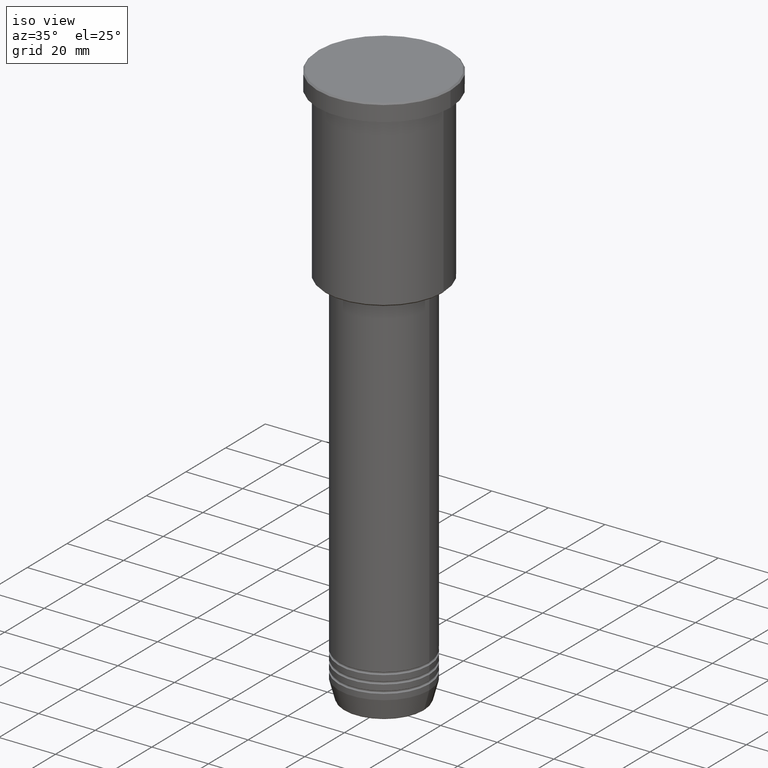
[diagram: clean part render]
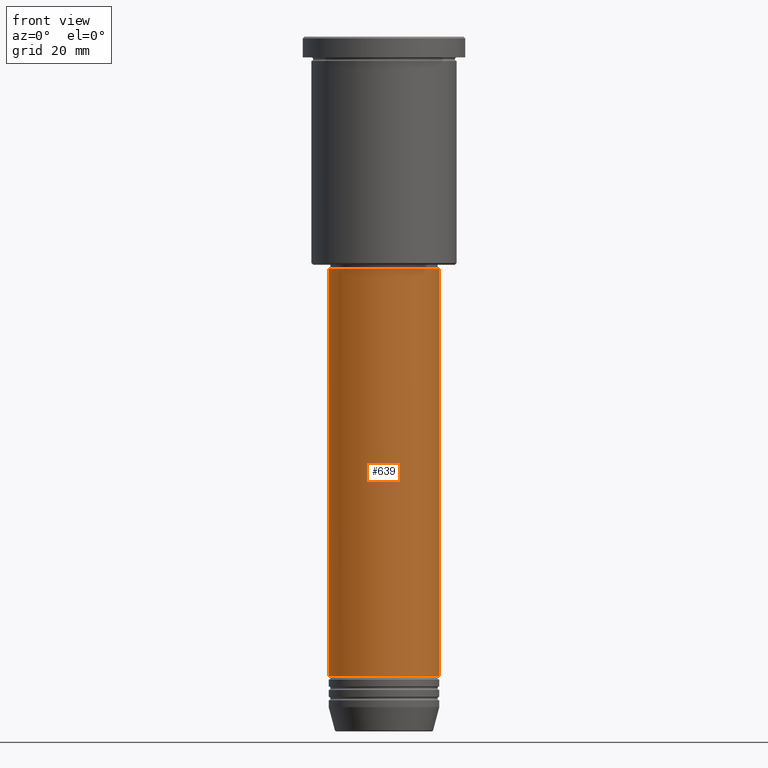
[diagram: tour spotlight — one face highlighted and labeled with its STEP entity id]
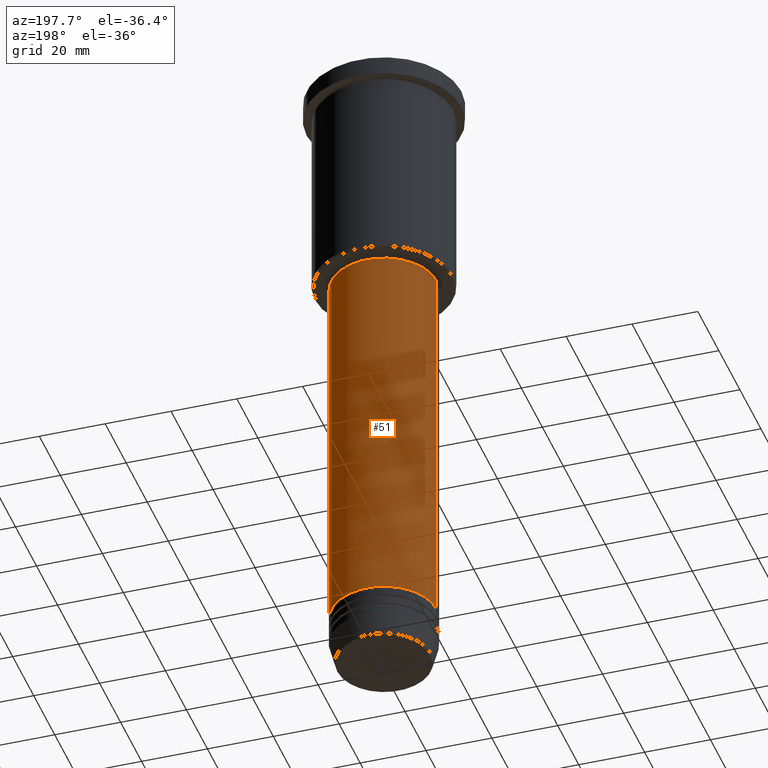
[diagram: tour spotlight — one face highlighted and labeled with its STEP entity id]
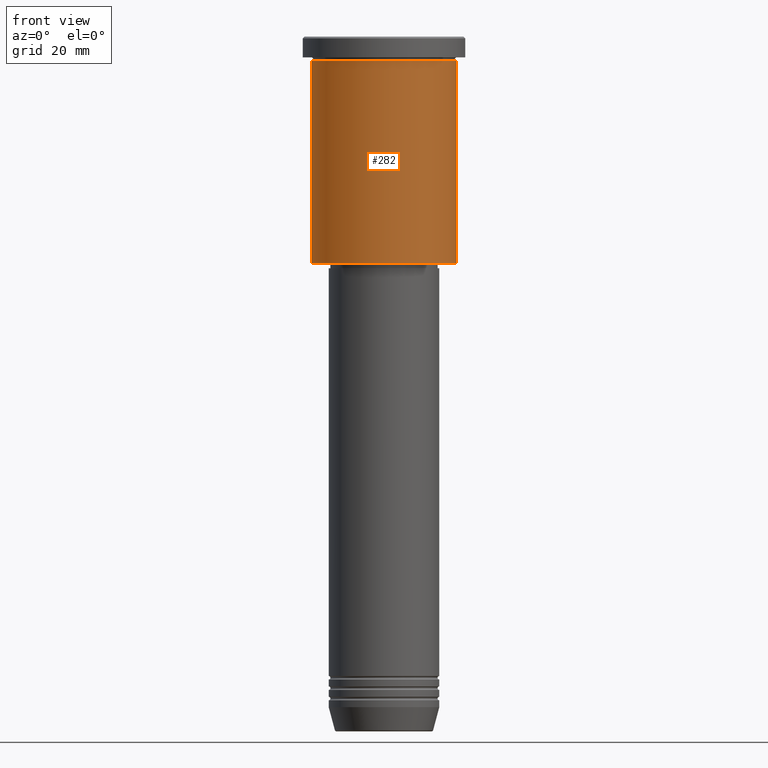
[diagram: tour spotlight — one face highlighted and labeled with its STEP entity id]
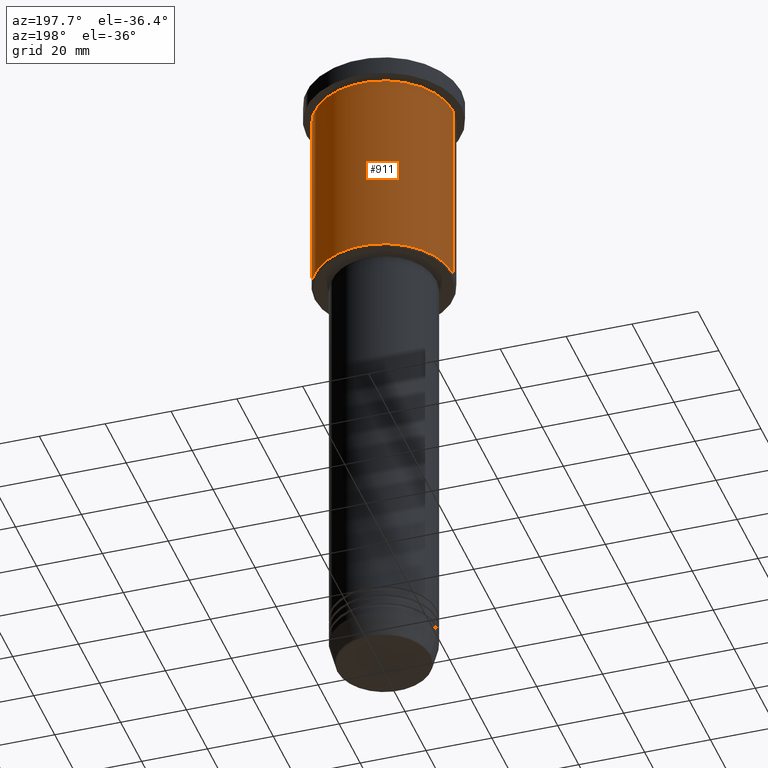
[diagram: tour spotlight — one face highlighted and labeled with its STEP entity id]
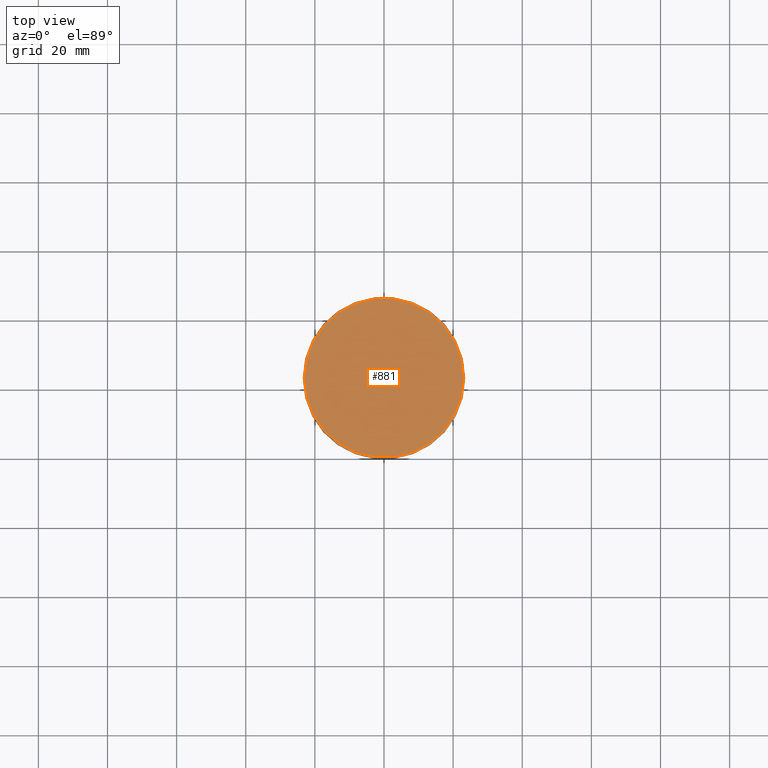
[diagram: tour spotlight — one face highlighted and labeled with its STEP entity id]
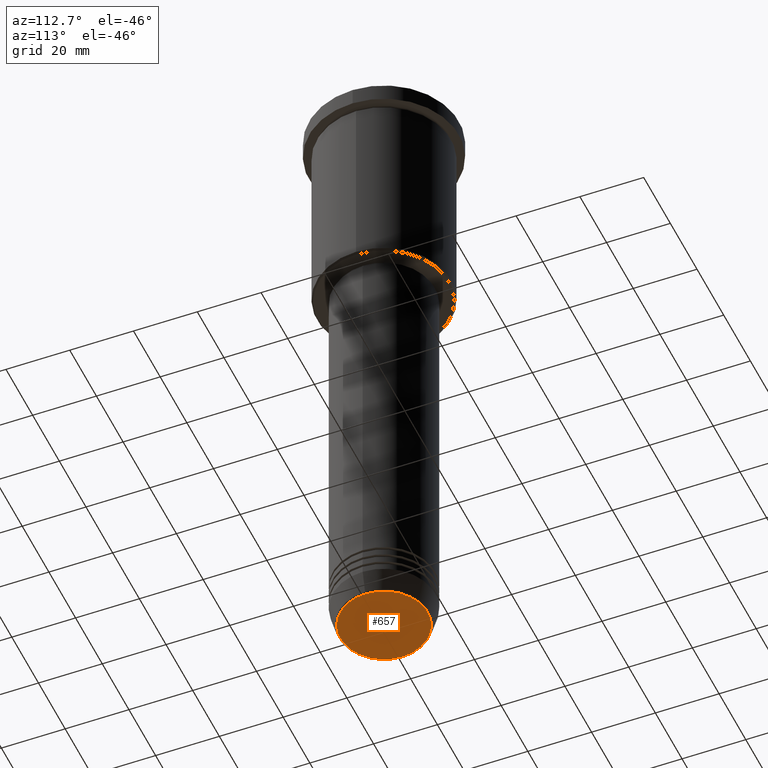
[diagram: tour spotlight — one face highlighted and labeled with its STEP entity id]
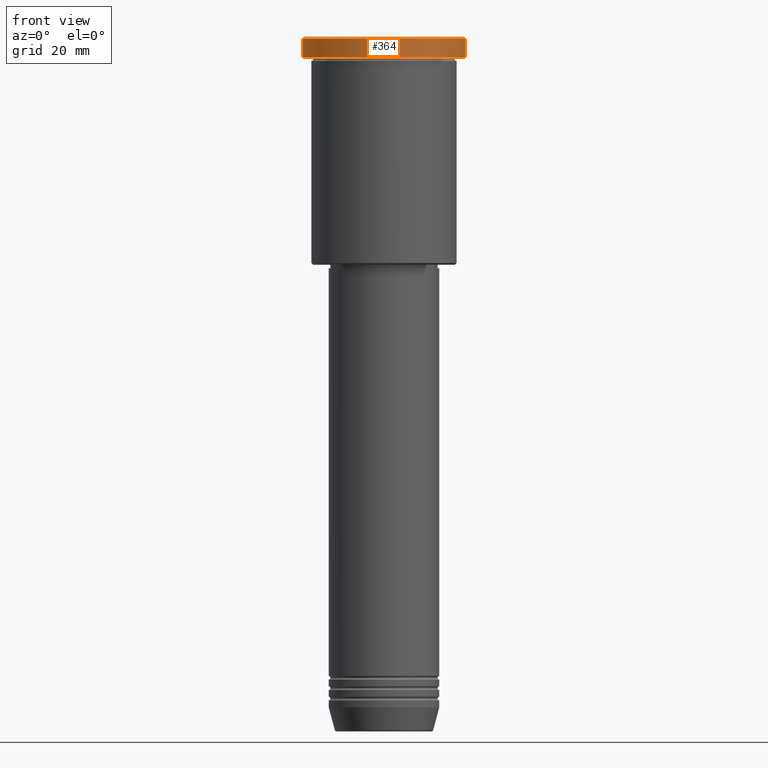
[diagram: tour spotlight — one face highlighted and labeled with its STEP entity id]
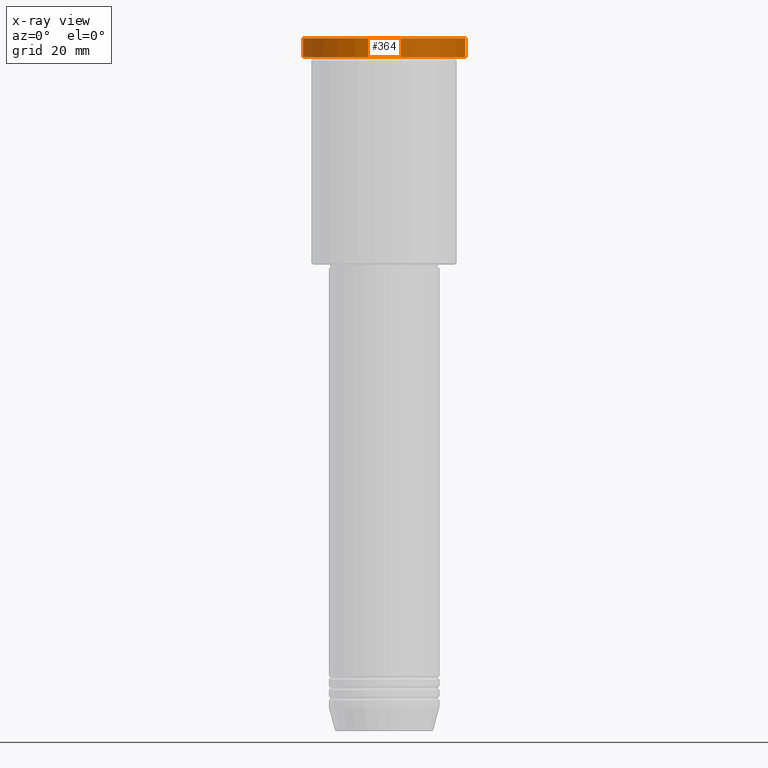
[diagram: x-ray of the same camera — body ghosted, this tour face saturated]
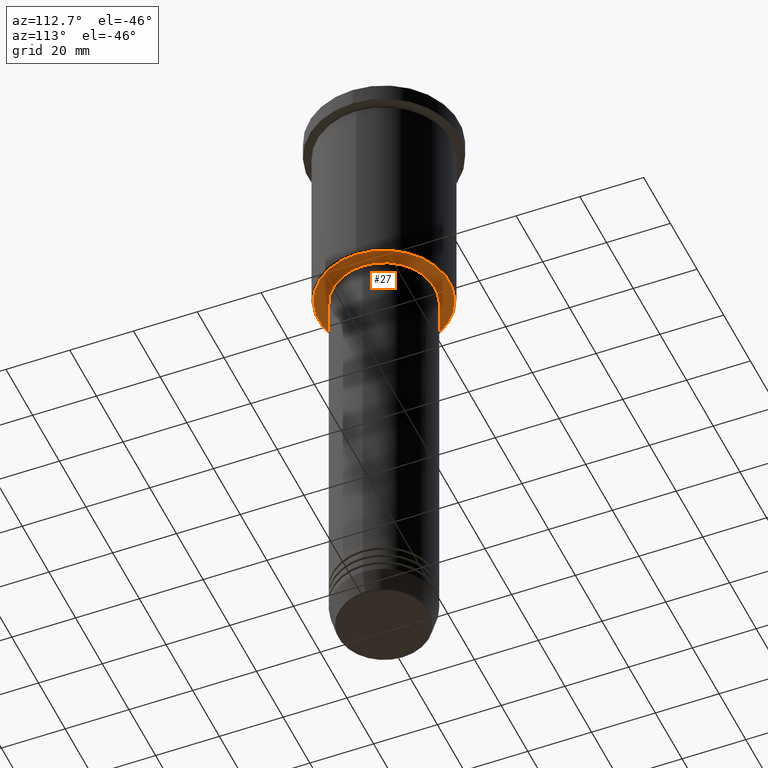
[diagram: tour spotlight — one face highlighted and labeled with its STEP entity id]
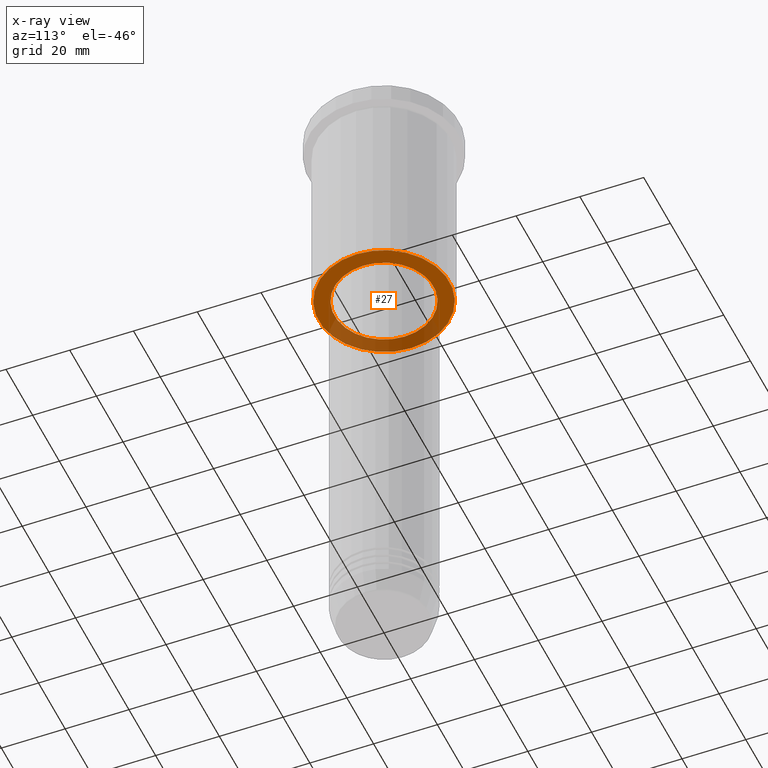
[diagram: x-ray of the same camera — body ghosted, this tour face saturated]
A machine part: a face-by-face anatomy tour. The part has 43 B-rep faces; the first image is the clean iso view, then the 8 largest visible faces are spotlighted one at a time (largest first), each with its STEP entity span.

Face 1 — front view, entity #639. In plain terms, the highlighted cylindrical surface (partial cylindrical patch) has radius 16 mm, axis along (-0, -0, 1).
Definition (entity closure, byte-faithful):
#7 = ORIENTED_EDGE ( 'NONE', *, *, #1064, .T. ) ;
#22 = EDGE_CURVE ( 'NONE', #729, #666, #437, .T. ) ;
#62 = DIRECTION ( 'NONE',  ( 1.000000000000000000, 0.000000000000000000, 0.000000000000000000 ) ) ;
#91 = CIRCLE ( 'NONE', #770, 16.00000000000000000 ) ;
#170 = DIRECTION ( 'NONE',  ( 1.000000000000000000, 0.000000000000000000, 0.000000000000000000 ) ) ;
#176 = VERTEX_POINT ( 'NONE', #318 ) ;
#234 = CARTESIAN_POINT ( 'NONE',  ( 16.00000000000000000, 0.000000000000000000, -185.0000000000000000 ) ) ;
#280 = AXIS2_PLACEMENT_3D ( 'NONE', #417, #700, #62 ) ;
#307 = DIRECTION ( 'NONE',  ( -0.000000000000000000, -0.000000000000000000, 1.000000000000000000 ) ) ;
#318 = CARTESIAN_POINT ( 'NONE',  ( -16.00000000000000000, 1.959434878635765131E-15, -67.00000000000002842 ) ) ;
#332 = DIRECTION ( 'NONE',  ( -0.000000000000000000, -0.000000000000000000, 1.000000000000000000 ) ) ;
#343 = EDGE_CURVE ( 'NONE', #729, #176, #450, .T. ) ;
#344 = VECTOR ( 'NONE', #616, 1000.000000000000000 ) ;
#400 = DIRECTION ( 'NONE',  ( -0.000000000000000000, -0.000000000000000000, 1.000000000000000000 ) ) ;
#417 = CARTESIAN_POINT ( 'NONE',  ( 0.000000000000000000, 0.000000000000000000, 0.000000000000000000 ) ) ;
#427 = EDGE_CURVE ( 'NONE', #176, #577, #91, .T. ) ;
#437 = CIRCLE ( 'NONE', #479, 16.00000000000000000 ) ;
#450 = LINE ( 'NONE', #734, #344 ) ;
#479 = AXIS2_PLACEMENT_3D ( 'NONE', #1053, #400, #170 ) ;
#577 = VERTEX_POINT ( 'NONE', #954 ) ;
#578 = VECTOR ( 'NONE', #332, 1000.000000000000000 ) ;
#581 = DIRECTION ( 'NONE',  ( 1.000000000000000000, 0.000000000000000000, 0.000000000000000000 ) ) ;
#600 = CYLINDRICAL_SURFACE ( 'NONE', #280, 16.00000000000000000 ) ;
#616 = DIRECTION ( 'NONE',  ( -0.000000000000000000, -0.000000000000000000, 1.000000000000000000 ) ) ;
#630 = ORIENTED_EDGE ( 'NONE', *, *, #22, .T. ) ;
#639 = ADVANCED_FACE ( 'NONE', ( #976 ), #600, .T. ) ;
#666 = VERTEX_POINT ( 'NONE', #234 ) ;
#700 = DIRECTION ( 'NONE',  ( -0.000000000000000000, -0.000000000000000000, 1.000000000000000000 ) ) ;
#729 = VERTEX_POINT ( 'NONE', #985 ) ;
#734 = CARTESIAN_POINT ( 'NONE',  ( -16.00000000000000000, 1.959434878635765131E-15, 0.000000000000000000 ) ) ;
#770 = AXIS2_PLACEMENT_3D ( 'NONE', #946, #307, #581 ) ;
#864 = LINE ( 'NONE', #878, #578 ) ;
#878 = CARTESIAN_POINT ( 'NONE',  ( 16.00000000000000000, 0.000000000000000000, 0.000000000000000000 ) ) ;
#905 = ORIENTED_EDGE ( 'NONE', *, *, #343, .F. ) ;
#942 = ORIENTED_EDGE ( 'NONE', *, *, #427, .F. ) ;
#946 = CARTESIAN_POINT ( 'NONE',  ( 0.000000000000000000, 0.000000000000000000, -67.00000000000002842 ) ) ;
#954 = CARTESIAN_POINT ( 'NONE',  ( 16.00000000000000000, 0.000000000000000000, -67.00000000000002842 ) ) ;
#976 = FACE_OUTER_BOUND ( 'NONE', #1040, .T. ) ;
#985 = CARTESIAN_POINT ( 'NONE',  ( -16.00000000000000000, 1.959434878635765131E-15, -185.0000000000000000 ) ) ;
#1040 = EDGE_LOOP ( 'NONE', ( #905, #630, #7, #942 ) ) ;
#1053 = CARTESIAN_POINT ( 'NONE',  ( 0.000000000000000000, 0.000000000000000000, -185.0000000000000000 ) ) ;
#1064 = EDGE_CURVE ( 'NONE', #666, #577, #864, .T. ) ;

Face 2 — auxiliary view, entity #51. In plain terms, the highlighted cylindrical surface (partial cylindrical patch) has radius 16 mm, axis along (-0, -0, 1).
Definition (entity closure, byte-faithful):
#45 = DIRECTION ( 'NONE',  ( 1.000000000000000000, 0.000000000000000000, 0.000000000000000000 ) ) ;
#51 = ADVANCED_FACE ( 'NONE', ( #850 ), #882, .T. ) ;
#155 = CARTESIAN_POINT ( 'NONE',  ( 0.000000000000000000, 0.000000000000000000, -67.00000000000002842 ) ) ;
#171 = DIRECTION ( 'NONE',  ( 1.000000000000000000, 0.000000000000000000, 0.000000000000000000 ) ) ;
#176 = VERTEX_POINT ( 'NONE', #318 ) ;
#227 = CIRCLE ( 'NONE', #958, 16.00000000000000000 ) ;
#234 = CARTESIAN_POINT ( 'NONE',  ( 16.00000000000000000, 0.000000000000000000, -185.0000000000000000 ) ) ;
#267 = EDGE_CURVE ( 'NONE', #666, #729, #227, .T. ) ;
#293 = ORIENTED_EDGE ( 'NONE', *, *, #334, .F. ) ;
#318 = CARTESIAN_POINT ( 'NONE',  ( -16.00000000000000000, 1.959434878635765131E-15, -67.00000000000002842 ) ) ;
#332 = DIRECTION ( 'NONE',  ( -0.000000000000000000, -0.000000000000000000, 1.000000000000000000 ) ) ;
#334 = EDGE_CURVE ( 'NONE', #577, #176, #1136, .T. ) ;
#343 = EDGE_CURVE ( 'NONE', #729, #176, #450, .T. ) ;
#344 = VECTOR ( 'NONE', #616, 1000.000000000000000 ) ;
#374 = ORIENTED_EDGE ( 'NONE', *, *, #343, .T. ) ;
#407 = ORIENTED_EDGE ( 'NONE', *, *, #1064, .F. ) ;
#444 = DIRECTION ( 'NONE',  ( -0.000000000000000000, -0.000000000000000000, 1.000000000000000000 ) ) ;
#450 = LINE ( 'NONE', #734, #344 ) ;
#508 = CARTESIAN_POINT ( 'NONE',  ( 0.000000000000000000, 0.000000000000000000, 0.000000000000000000 ) ) ;
#577 = VERTEX_POINT ( 'NONE', #954 ) ;
#578 = VECTOR ( 'NONE', #332, 1000.000000000000000 ) ;
#616 = DIRECTION ( 'NONE',  ( -0.000000000000000000, -0.000000000000000000, 1.000000000000000000 ) ) ;
#625 = AXIS2_PLACEMENT_3D ( 'NONE', #508, #870, #45 ) ;
#638 = DIRECTION ( 'NONE',  ( 1.000000000000000000, 0.000000000000000000, 0.000000000000000000 ) ) ;
#666 = VERTEX_POINT ( 'NONE', #234 ) ;
#728 = CARTESIAN_POINT ( 'NONE',  ( 0.000000000000000000, 0.000000000000000000, -185.0000000000000000 ) ) ;
#729 = VERTEX_POINT ( 'NONE', #985 ) ;
#734 = CARTESIAN_POINT ( 'NONE',  ( -16.00000000000000000, 1.959434878635765131E-15, 0.000000000000000000 ) ) ;
#850 = FACE_OUTER_BOUND ( 'NONE', #856, .T. ) ;
#856 = EDGE_LOOP ( 'NONE', ( #1123, #374, #293, #407 ) ) ;
#864 = LINE ( 'NONE', #878, #578 ) ;
#870 = DIRECTION ( 'NONE',  ( -0.000000000000000000, -0.000000000000000000, 1.000000000000000000 ) ) ;
#878 = CARTESIAN_POINT ( 'NONE',  ( 16.00000000000000000, 0.000000000000000000, 0.000000000000000000 ) ) ;
#882 = CYLINDRICAL_SURFACE ( 'NONE', #625, 16.00000000000000000 ) ;
#901 = AXIS2_PLACEMENT_3D ( 'NONE', #155, #444, #638 ) ;
#954 = CARTESIAN_POINT ( 'NONE',  ( 16.00000000000000000, 0.000000000000000000, -67.00000000000002842 ) ) ;
#958 = AXIS2_PLACEMENT_3D ( 'NONE', #728, #1006, #171 ) ;
#985 = CARTESIAN_POINT ( 'NONE',  ( -16.00000000000000000, 1.959434878635765131E-15, -185.0000000000000000 ) ) ;
#1006 = DIRECTION ( 'NONE',  ( -0.000000000000000000, -0.000000000000000000, 1.000000000000000000 ) ) ;
#1064 = EDGE_CURVE ( 'NONE', #666, #577, #864, .T. ) ;
#1123 = ORIENTED_EDGE ( 'NONE', *, *, #267, .T. ) ;
#1136 = CIRCLE ( 'NONE', #901, 16.00000000000000000 ) ;

Face 3 — front view, entity #282. In plain terms, the highlighted cylindrical surface (partial cylindrical patch) has radius 21 mm, axis along (-0, -0, 1).
Definition (entity closure, byte-faithful):
#3 = CARTESIAN_POINT ( 'NONE',  ( 0.000000000000000000, 0.000000000000000000, 0.000000000000000000 ) ) ;
#26 = DIRECTION ( 'NONE',  ( -1.000000000000000000, 0.000000000000000000, 0.000000000000000000 ) ) ;
#32 = ORIENTED_EDGE ( 'NONE', *, *, #1005, .T. ) ;
#37 = EDGE_CURVE ( 'NONE', #137, #1137, #567, .T. ) ;
#89 = ORIENTED_EDGE ( 'NONE', *, *, #1141, .F. ) ;
#114 = LINE ( 'NONE', #764, #918 ) ;
#137 = VERTEX_POINT ( 'NONE', #944 ) ;
#184 = AXIS2_PLACEMENT_3D ( 'NONE', #3, #531, #1176 ) ;
#235 = CARTESIAN_POINT ( 'NONE',  ( 0.000000000000000000, 0.000000000000000000, -6.999999999999994671 ) ) ;
#282 = ADVANCED_FACE ( 'NONE', ( #629 ), #712, .T. ) ;
#319 = EDGE_LOOP ( 'NONE', ( #719, #1019, #32, #89 ) ) ;
#341 = AXIS2_PLACEMENT_3D ( 'NONE', #235, #799, #588 ) ;
#362 = AXIS2_PLACEMENT_3D ( 'NONE', #987, #488, #26 ) ;
#394 = EDGE_CURVE ( 'NONE', #137, #747, #885, .T. ) ;
#433 = DIRECTION ( 'NONE',  ( -0.000000000000000000, -0.000000000000000000, 1.000000000000000000 ) ) ;
#488 = DIRECTION ( 'NONE',  ( -0.000000000000000000, -0.000000000000000000, 1.000000000000000000 ) ) ;
#531 = DIRECTION ( 'NONE',  ( -0.000000000000000000, -0.000000000000000000, 1.000000000000000000 ) ) ;
#567 = LINE ( 'NONE', #931, #743 ) ;
#588 = DIRECTION ( 'NONE',  ( 1.000000000000000000, 0.000000000000000000, 0.000000000000000000 ) ) ;
#599 = CARTESIAN_POINT ( 'NONE',  ( -21.00000000000000000, 2.571758278209441661E-15, -6.999999999999994671 ) ) ;
#629 = FACE_OUTER_BOUND ( 'NONE', #319, .T. ) ;
#706 = CARTESIAN_POINT ( 'NONE',  ( 21.00000000000000000, 0.000000000000000000, -6.999999999999994671 ) ) ;
#712 = CYLINDRICAL_SURFACE ( 'NONE', #184, 21.00000000000000000 ) ;
#719 = ORIENTED_EDGE ( 'NONE', *, *, #37, .F. ) ;
#743 = VECTOR ( 'NONE', #433, 1000.000000000000000 ) ;
#747 = VERTEX_POINT ( 'NONE', #1004 ) ;
#764 = CARTESIAN_POINT ( 'NONE',  ( 21.00000000000000000, 0.000000000000000000, 0.000000000000000000 ) ) ;
#771 = VERTEX_POINT ( 'NONE', #706 ) ;
#778 = DIRECTION ( 'NONE',  ( -0.000000000000000000, -0.000000000000000000, 1.000000000000000000 ) ) ;
#799 = DIRECTION ( 'NONE',  ( -0.000000000000000000, -0.000000000000000000, 1.000000000000000000 ) ) ;
#808 = CIRCLE ( 'NONE', #341, 21.00000000000000000 ) ;
#885 = CIRCLE ( 'NONE', #362, 21.00000000000000000 ) ;
#918 = VECTOR ( 'NONE', #778, 1000.000000000000000 ) ;
#931 = CARTESIAN_POINT ( 'NONE',  ( -21.00000000000000000, 2.571758278209441661E-15, 0.000000000000000000 ) ) ;
#944 = CARTESIAN_POINT ( 'NONE',  ( -21.00000000000000000, 2.571758278209441661E-15, -65.49999999999998579 ) ) ;
#987 = CARTESIAN_POINT ( 'NONE',  ( 0.000000000000000000, 0.000000000000000000, -65.49999999999998579 ) ) ;
#1004 = CARTESIAN_POINT ( 'NONE',  ( 21.00000000000000000, 0.000000000000000000, -65.49999999999998579 ) ) ;
#1005 = EDGE_CURVE ( 'NONE', #747, #771, #114, .T. ) ;
#1019 = ORIENTED_EDGE ( 'NONE', *, *, #394, .T. ) ;
#1137 = VERTEX_POINT ( 'NONE', #599 ) ;
#1141 = EDGE_CURVE ( 'NONE', #1137, #771, #808, .T. ) ;
#1176 = DIRECTION ( 'NONE',  ( 1.000000000000000000, 0.000000000000000000, 0.000000000000000000 ) ) ;

Face 4 — auxiliary view, entity #911. In plain terms, the highlighted cylindrical surface (partial cylindrical patch) has radius 21 mm, axis along (-0, -0, 1).
Definition (entity closure, byte-faithful):
#37 = EDGE_CURVE ( 'NONE', #137, #1137, #567, .T. ) ;
#80 = ORIENTED_EDGE ( 'NONE', *, *, #37, .T. ) ;
#114 = LINE ( 'NONE', #764, #918 ) ;
#132 = AXIS2_PLACEMENT_3D ( 'NONE', #593, #222, #1138 ) ;
#137 = VERTEX_POINT ( 'NONE', #944 ) ;
#139 = CARTESIAN_POINT ( 'NONE',  ( 0.000000000000000000, 0.000000000000000000, -65.49999999999998579 ) ) ;
#173 = EDGE_CURVE ( 'NONE', #771, #1137, #283, .T. ) ;
#222 = DIRECTION ( 'NONE',  ( -0.000000000000000000, -0.000000000000000000, 1.000000000000000000 ) ) ;
#283 = CIRCLE ( 'NONE', #132, 21.00000000000000000 ) ;
#289 = CYLINDRICAL_SURFACE ( 'NONE', #501, 21.00000000000000000 ) ;
#433 = DIRECTION ( 'NONE',  ( -0.000000000000000000, -0.000000000000000000, 1.000000000000000000 ) ) ;
#466 = EDGE_LOOP ( 'NONE', ( #983, #80, #480, #569 ) ) ;
#470 = DIRECTION ( 'NONE',  ( -0.000000000000000000, -0.000000000000000000, 1.000000000000000000 ) ) ;
#480 = ORIENTED_EDGE ( 'NONE', *, *, #173, .F. ) ;
#501 = AXIS2_PLACEMENT_3D ( 'NONE', #858, #470, #742 ) ;
#567 = LINE ( 'NONE', #931, #743 ) ;
#569 = ORIENTED_EDGE ( 'NONE', *, *, #1005, .F. ) ;
#593 = CARTESIAN_POINT ( 'NONE',  ( 0.000000000000000000, 0.000000000000000000, -6.999999999999994671 ) ) ;
#599 = CARTESIAN_POINT ( 'NONE',  ( -21.00000000000000000, 2.571758278209441661E-15, -6.999999999999994671 ) ) ;
#694 = DIRECTION ( 'NONE',  ( -1.000000000000000000, 0.000000000000000000, 0.000000000000000000 ) ) ;
#706 = CARTESIAN_POINT ( 'NONE',  ( 21.00000000000000000, 0.000000000000000000, -6.999999999999994671 ) ) ;
#742 = DIRECTION ( 'NONE',  ( 1.000000000000000000, 0.000000000000000000, 0.000000000000000000 ) ) ;
#743 = VECTOR ( 'NONE', #433, 1000.000000000000000 ) ;
#747 = VERTEX_POINT ( 'NONE', #1004 ) ;
#764 = CARTESIAN_POINT ( 'NONE',  ( 21.00000000000000000, 0.000000000000000000, 0.000000000000000000 ) ) ;
#771 = VERTEX_POINT ( 'NONE', #706 ) ;
#778 = DIRECTION ( 'NONE',  ( -0.000000000000000000, -0.000000000000000000, 1.000000000000000000 ) ) ;
#845 = AXIS2_PLACEMENT_3D ( 'NONE', #139, #961, #694 ) ;
#853 = FACE_OUTER_BOUND ( 'NONE', #466, .T. ) ;
#858 = CARTESIAN_POINT ( 'NONE',  ( 0.000000000000000000, 0.000000000000000000, 0.000000000000000000 ) ) ;
#911 = ADVANCED_FACE ( 'NONE', ( #853 ), #289, .T. ) ;
#918 = VECTOR ( 'NONE', #778, 1000.000000000000000 ) ;
#931 = CARTESIAN_POINT ( 'NONE',  ( -21.00000000000000000, 2.571758278209441661E-15, 0.000000000000000000 ) ) ;
#944 = CARTESIAN_POINT ( 'NONE',  ( -21.00000000000000000, 2.571758278209441661E-15, -65.49999999999998579 ) ) ;
#961 = DIRECTION ( 'NONE',  ( -0.000000000000000000, -0.000000000000000000, 1.000000000000000000 ) ) ;
#983 = ORIENTED_EDGE ( 'NONE', *, *, #1011, .T. ) ;
#1004 = CARTESIAN_POINT ( 'NONE',  ( 21.00000000000000000, 0.000000000000000000, -65.49999999999998579 ) ) ;
#1005 = EDGE_CURVE ( 'NONE', #747, #771, #114, .T. ) ;
#1011 = EDGE_CURVE ( 'NONE', #747, #137, #1013, .T. ) ;
#1013 = CIRCLE ( 'NONE', #845, 21.00000000000000000 ) ;
#1137 = VERTEX_POINT ( 'NONE', #599 ) ;
#1138 = DIRECTION ( 'NONE',  ( 1.000000000000000000, 0.000000000000000000, 0.000000000000000000 ) ) ;

Face 5 — top view, entity #881. In plain terms, the highlighted planar face has unit normal (0, -0, 1).
Definition (entity closure, byte-faithful):
#5 = DIRECTION ( 'NONE',  ( 0.000000000000000000, -0.000000000000000000, 1.000000000000000000 ) ) ;
#24 = CARTESIAN_POINT ( 'NONE',  ( 22.99999999999999645, 2.847303808017596139E-15, 0.000000000000000000 ) ) ;
#29 = CARTESIAN_POINT ( 'NONE',  ( 0.000000000000000000, 0.000000000000000000, 0.000000000000000000 ) ) ;
#100 = ORIENTED_EDGE ( 'NONE', *, *, #294, .T. ) ;
#119 = EDGE_LOOP ( 'NONE', ( #100, #894 ) ) ;
#128 = AXIS2_PLACEMENT_3D ( 'NONE', #29, #5, #1128 ) ;
#162 = CIRCLE ( 'NONE', #1039, 22.99999999999999645 ) ;
#294 = EDGE_CURVE ( 'NONE', #426, #928, #162, .T. ) ;
#354 = DIRECTION ( 'NONE',  ( -0.000000000000000000, -0.000000000000000000, 1.000000000000000000 ) ) ;
#366 = DIRECTION ( 'NONE',  ( 1.000000000000000000, 0.000000000000000000, 0.000000000000000000 ) ) ;
#406 = CARTESIAN_POINT ( 'NONE',  ( -22.99999999999999645, 0.000000000000000000, 0.000000000000000000 ) ) ;
#426 = VERTEX_POINT ( 'NONE', #406 ) ;
#566 = FACE_OUTER_BOUND ( 'NONE', #119, .T. ) ;
#635 = CARTESIAN_POINT ( 'NONE',  ( 0.000000000000000000, 0.000000000000000000, 0.000000000000000000 ) ) ;
#664 = CIRCLE ( 'NONE', #979, 22.99999999999999645 ) ;
#725 = DIRECTION ( 'NONE',  ( 1.000000000000000000, 0.000000000000000000, 0.000000000000000000 ) ) ;
#820 = CARTESIAN_POINT ( 'NONE',  ( 0.000000000000000000, 0.000000000000000000, 0.000000000000000000 ) ) ;
#834 = PLANE ( 'NONE',  #128 ) ;
#857 = EDGE_CURVE ( 'NONE', #928, #426, #664, .T. ) ;
#881 = ADVANCED_FACE ( 'NONE', ( #566 ), #834, .T. ) ;
#894 = ORIENTED_EDGE ( 'NONE', *, *, #857, .T. ) ;
#928 = VERTEX_POINT ( 'NONE', #24 ) ;
#979 = AXIS2_PLACEMENT_3D ( 'NONE', #820, #354, #725 ) ;
#1000 = DIRECTION ( 'NONE',  ( -0.000000000000000000, -0.000000000000000000, 1.000000000000000000 ) ) ;
#1039 = AXIS2_PLACEMENT_3D ( 'NONE', #635, #1000, #366 ) ;
#1128 = DIRECTION ( 'NONE',  ( 1.000000000000000000, 0.000000000000000000, 0.000000000000000000 ) ) ;

Face 6 — auxiliary view, entity #657. In plain terms, the highlighted planar face has unit normal (0, -0, 1).
Definition (entity closure, byte-faithful):
#55 = CIRCLE ( 'NONE', #640, 13.74069215899266538 ) ;
#116 = ORIENTED_EDGE ( 'NONE', *, *, #518, .T. ) ;
#136 = CARTESIAN_POINT ( 'NONE',  ( 0.000000000000000000, 0.000000000000000000, -201.0000000000000000 ) ) ;
#146 = FACE_OUTER_BOUND ( 'NONE', #720, .T. ) ;
#207 = DIRECTION ( 'NONE',  ( 1.000000000000000000, 0.000000000000000000, 0.000000000000000000 ) ) ;
#320 = AXIS2_PLACEMENT_3D ( 'NONE', #136, #1150, #1066 ) ;
#330 = PLANE ( 'NONE',  #320 ) ;
#485 = ORIENTED_EDGE ( 'NONE', *, *, #491, .T. ) ;
#491 = EDGE_CURVE ( 'NONE', #757, #1110, #55, .T. ) ;
#518 = EDGE_CURVE ( 'NONE', #1110, #757, #534, .T. ) ;
#534 = CIRCLE ( 'NONE', #748, 13.74069215899266538 ) ;
#562 = DIRECTION ( 'NONE',  ( 1.000000000000000000, 0.000000000000000000, 0.000000000000000000 ) ) ;
#640 = AXIS2_PLACEMENT_3D ( 'NONE', #1121, #940, #207 ) ;
#657 = ADVANCED_FACE ( 'NONE', ( #146 ), #330, .F. ) ;
#682 = CARTESIAN_POINT ( 'NONE',  ( 13.74069215899266538, 0.000000000000000000, -201.0000000000000000 ) ) ;
#720 = EDGE_LOOP ( 'NONE', ( #116, #485 ) ) ;
#748 = AXIS2_PLACEMENT_3D ( 'NONE', #859, #1026, #562 ) ;
#757 = VERTEX_POINT ( 'NONE', #914 ) ;
#859 = CARTESIAN_POINT ( 'NONE',  ( 0.000000000000000000, 0.000000000000000000, -201.0000000000000000 ) ) ;
#914 = CARTESIAN_POINT ( 'NONE',  ( -13.74069215899266538, 1.712322416342416577E-15, -201.0000000000000000 ) ) ;
#940 = DIRECTION ( 'NONE',  ( 0.000000000000000000, 0.000000000000000000, -1.000000000000000000 ) ) ;
#1026 = DIRECTION ( 'NONE',  ( 0.000000000000000000, 0.000000000000000000, -1.000000000000000000 ) ) ;
#1066 = DIRECTION ( 'NONE',  ( 1.000000000000000000, 0.000000000000000000, 0.000000000000000000 ) ) ;
#1110 = VERTEX_POINT ( 'NONE', #682 ) ;
#1121 = CARTESIAN_POINT ( 'NONE',  ( 0.000000000000000000, 0.000000000000000000, -201.0000000000000000 ) ) ;
#1150 = DIRECTION ( 'NONE',  ( 0.000000000000000000, -0.000000000000000000, 1.000000000000000000 ) ) ;

Face 7 — front view, entity #364. An x-ray twin of the same camera follows (body ghosted, this face saturated) — the face is partly hidden behind the body. In plain terms, the highlighted cylindrical surface (partial cylindrical patch) has radius 23.5 mm, axis along (-0, -0, 1).
Definition (entity closure, byte-faithful):
#8 = CYLINDRICAL_SURFACE ( 'NONE', #107, 23.50000000000000000 ) ;
#40 = VECTOR ( 'NONE', #1041, 1000.000000000000000 ) ;
#47 = DIRECTION ( 'NONE',  ( 1.000000000000000000, 0.000000000000000000, 0.000000000000000000 ) ) ;
#93 = CARTESIAN_POINT ( 'NONE',  ( 0.000000000000000000, 0.000000000000000000, 0.000000000000000000 ) ) ;
#94 = VERTEX_POINT ( 'NONE', #314 ) ;
#107 = AXIS2_PLACEMENT_3D ( 'NONE', #93, #1109, #274 ) ;
#204 = CIRCLE ( 'NONE', #402, 23.50000000000000000 ) ;
#233 = EDGE_CURVE ( 'NONE', #238, #731, #681, .T. ) ;
#238 = VERTEX_POINT ( 'NONE', #441 ) ;
#274 = DIRECTION ( 'NONE',  ( 1.000000000000000000, 0.000000000000000000, 0.000000000000000000 ) ) ;
#314 = CARTESIAN_POINT ( 'NONE',  ( -23.50000000000000000, 2.877919977996280320E-15, -5.999999999999994671 ) ) ;
#328 = EDGE_CURVE ( 'NONE', #94, #1048, #1009, .T. ) ;
#359 = ORIENTED_EDGE ( 'NONE', *, *, #839, .T. ) ;
#364 = ADVANCED_FACE ( 'NONE', ( #991 ), #8, .T. ) ;
#376 = ORIENTED_EDGE ( 'NONE', *, *, #1127, .T. ) ;
#402 = AXIS2_PLACEMENT_3D ( 'NONE', #1051, #875, #47 ) ;
#441 = CARTESIAN_POINT ( 'NONE',  ( 23.50000000000000000, 0.000000000000000000, -5.999999999999994671 ) ) ;
#543 = DIRECTION ( 'NONE',  ( 1.000000000000000000, 0.000000000000000000, 0.000000000000000000 ) ) ;
#557 = EDGE_LOOP ( 'NONE', ( #910, #376, #697, #359 ) ) ;
#611 = CARTESIAN_POINT ( 'NONE',  ( -23.50000000000000000, 2.877919977996280320E-15, -0.5000000000000004441 ) ) ;
#626 = DIRECTION ( 'NONE',  ( 0.000000000000000000, 0.000000000000000000, -1.000000000000000000 ) ) ;
#681 = LINE ( 'NONE', #1084, #40 ) ;
#697 = ORIENTED_EDGE ( 'NONE', *, *, #233, .T. ) ;
#731 = VERTEX_POINT ( 'NONE', #811 ) ;
#807 = CIRCLE ( 'NONE', #994, 23.50000000000000000 ) ;
#811 = CARTESIAN_POINT ( 'NONE',  ( 23.50000000000000000, 0.000000000000000000, -0.5000000000000004441 ) ) ;
#839 = EDGE_CURVE ( 'NONE', #731, #1048, #807, .T. ) ;
#875 = DIRECTION ( 'NONE',  ( -0.000000000000000000, -0.000000000000000000, 1.000000000000000000 ) ) ;
#898 = CARTESIAN_POINT ( 'NONE',  ( -23.50000000000000000, 2.877919977996280320E-15, 0.000000000000000000 ) ) ;
#904 = DIRECTION ( 'NONE',  ( -0.000000000000000000, -0.000000000000000000, 1.000000000000000000 ) ) ;
#910 = ORIENTED_EDGE ( 'NONE', *, *, #328, .F. ) ;
#921 = VECTOR ( 'NONE', #904, 1000.000000000000000 ) ;
#991 = FACE_OUTER_BOUND ( 'NONE', #557, .T. ) ;
#994 = AXIS2_PLACEMENT_3D ( 'NONE', #1102, #626, #543 ) ;
#1009 = LINE ( 'NONE', #898, #921 ) ;
#1041 = DIRECTION ( 'NONE',  ( -0.000000000000000000, -0.000000000000000000, 1.000000000000000000 ) ) ;
#1048 = VERTEX_POINT ( 'NONE', #611 ) ;
#1051 = CARTESIAN_POINT ( 'NONE',  ( 0.000000000000000000, 0.000000000000000000, -5.999999999999994671 ) ) ;
#1084 = CARTESIAN_POINT ( 'NONE',  ( 23.50000000000000000, 0.000000000000000000, 0.000000000000000000 ) ) ;
#1102 = CARTESIAN_POINT ( 'NONE',  ( 0.000000000000000000, 0.000000000000000000, -0.5000000000000004441 ) ) ;
#1109 = DIRECTION ( 'NONE',  ( -0.000000000000000000, -0.000000000000000000, 1.000000000000000000 ) ) ;
#1127 = EDGE_CURVE ( 'NONE', #94, #238, #204, .T. ) ;

Face 8 — auxiliary view, entity #27. An x-ray twin of the same camera follows (body ghosted, this face saturated) — the face is partly hidden behind the body. In plain terms, the highlighted planar face has unit normal (0, 0, -1).
Definition (entity closure, byte-faithful):
#2 = FACE_BOUND ( 'NONE', #561, .T. ) ;
#17 = CIRCLE ( 'NONE', #59, 15.50000000000000000 ) ;
#27 = ADVANCED_FACE ( 'NONE', ( #644, #2 ), #101, .T. ) ;
#59 = AXIS2_PLACEMENT_3D ( 'NONE', #161, #909, #79 ) ;
#79 = DIRECTION ( 'NONE',  ( 1.000000000000000000, 0.000000000000000000, 0.000000000000000000 ) ) ;
#84 = DIRECTION ( 'NONE',  ( 1.000000000000000000, 0.000000000000000000, 0.000000000000000000 ) ) ;
#101 = PLANE ( 'NONE',  #503 ) ;
#111 = VERTEX_POINT ( 'NONE', #583 ) ;
#140 = CARTESIAN_POINT ( 'NONE',  ( 0.000000000000000000, 0.000000000000000000, -66.00000000000001421 ) ) ;
#161 = CARTESIAN_POINT ( 'NONE',  ( 0.000000000000000000, 0.000000000000000000, -66.00000000000001421 ) ) ;
#177 = CARTESIAN_POINT ( 'NONE',  ( 0.000000000000000000, 0.000000000000000000, -66.00000000000001421 ) ) ;
#179 = CIRCLE ( 'NONE', #338, 15.50000000000000000 ) ;
#255 = CARTESIAN_POINT ( 'NONE',  ( 20.49999999999996447, 0.000000000000000000, -66.00000000000001421 ) ) ;
#264 = ORIENTED_EDGE ( 'NONE', *, *, #586, .T. ) ;
#327 = ORIENTED_EDGE ( 'NONE', *, *, #463, .T. ) ;
#338 = AXIS2_PLACEMENT_3D ( 'NONE', #177, #803, #84 ) ;
#350 = CARTESIAN_POINT ( 'NONE',  ( -20.49999999999996447, 2.541142108230755902E-15, -66.00000000000001421 ) ) ;
#360 = EDGE_LOOP ( 'NONE', ( #327, #264 ) ) ;
#373 = ORIENTED_EDGE ( 'NONE', *, *, #758, .T. ) ;
#385 = VERTEX_POINT ( 'NONE', #255 ) ;
#387 = EDGE_CURVE ( 'NONE', #111, #1030, #17, .T. ) ;
#451 = ORIENTED_EDGE ( 'NONE', *, *, #387, .T. ) ;
#456 = CIRCLE ( 'NONE', #826, 20.49999999999996447 ) ;
#463 = EDGE_CURVE ( 'NONE', #385, #821, #456, .T. ) ;
#476 = DIRECTION ( 'NONE',  ( -1.000000000000000000, 0.000000000000000000, 0.000000000000000000 ) ) ;
#477 = AXIS2_PLACEMENT_3D ( 'NONE', #140, #873, #526 ) ;
#503 = AXIS2_PLACEMENT_3D ( 'NONE', #652, #1025, #1107 ) ;
#519 = CIRCLE ( 'NONE', #477, 20.49999999999996447 ) ;
#526 = DIRECTION ( 'NONE',  ( -1.000000000000000000, 0.000000000000000000, 0.000000000000000000 ) ) ;
#561 = EDGE_LOOP ( 'NONE', ( #373, #451 ) ) ;
#583 = CARTESIAN_POINT ( 'NONE',  ( -15.50000000000000000, 1.898202538678397557E-15, -66.00000000000001421 ) ) ;
#586 = EDGE_CURVE ( 'NONE', #821, #385, #519, .T. ) ;
#644 = FACE_OUTER_BOUND ( 'NONE', #360, .T. ) ;
#652 = CARTESIAN_POINT ( 'NONE',  ( 0.000000000000000000, 21.00000000000000000, -66.00000000000001421 ) ) ;
#758 = EDGE_CURVE ( 'NONE', #1030, #111, #179, .T. ) ;
#760 = DIRECTION ( 'NONE',  ( 0.000000000000000000, 0.000000000000000000, -1.000000000000000000 ) ) ;
#803 = DIRECTION ( 'NONE',  ( -0.000000000000000000, -0.000000000000000000, 1.000000000000000000 ) ) ;
#821 = VERTEX_POINT ( 'NONE', #350 ) ;
#826 = AXIS2_PLACEMENT_3D ( 'NONE', #1129, #760, #476 ) ;
#873 = DIRECTION ( 'NONE',  ( 0.000000000000000000, 0.000000000000000000, -1.000000000000000000 ) ) ;
#909 = DIRECTION ( 'NONE',  ( -0.000000000000000000, -0.000000000000000000, 1.000000000000000000 ) ) ;
#1025 = DIRECTION ( 'NONE',  ( 0.000000000000000000, 0.000000000000000000, -1.000000000000000000 ) ) ;
#1030 = VERTEX_POINT ( 'NONE', #1142 ) ;
#1107 = DIRECTION ( 'NONE',  ( -1.000000000000000000, 0.000000000000000000, -0.000000000000000000 ) ) ;
#1129 = CARTESIAN_POINT ( 'NONE',  ( 0.000000000000000000, 0.000000000000000000, -66.00000000000001421 ) ) ;
#1142 = CARTESIAN_POINT ( 'NONE',  ( 15.50000000000000000, 0.000000000000000000, -66.00000000000001421 ) ) ;